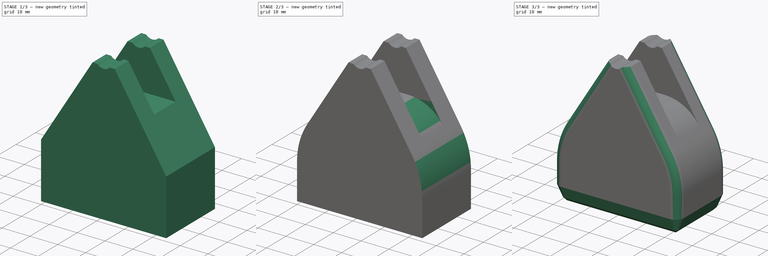
[diagram: build sequence overview — one tinted view per stage of 3, left to right]
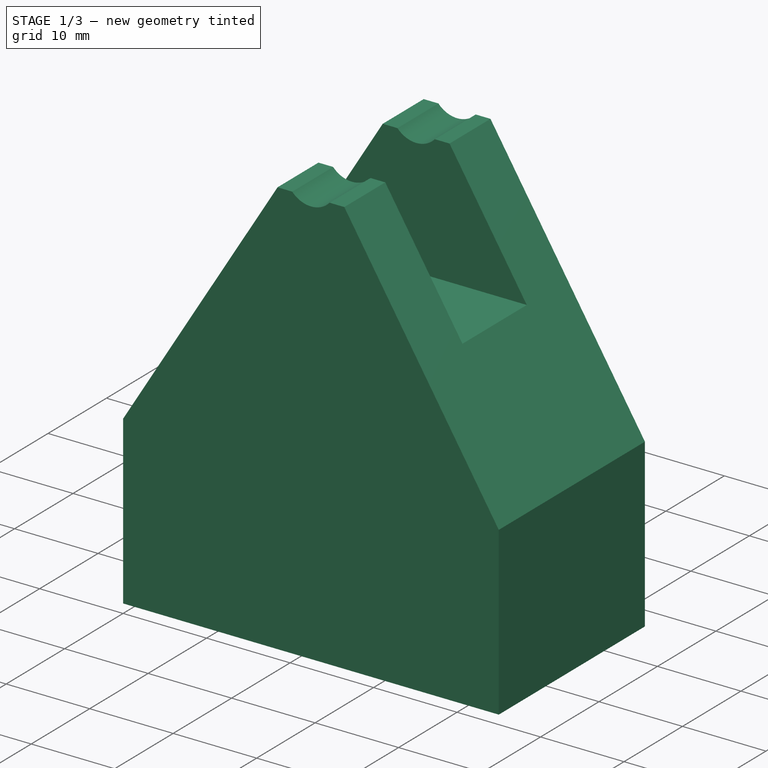
[diagram: stage 1 of 3 — iso view after this stage's code; geometry added in this stage tinted green]
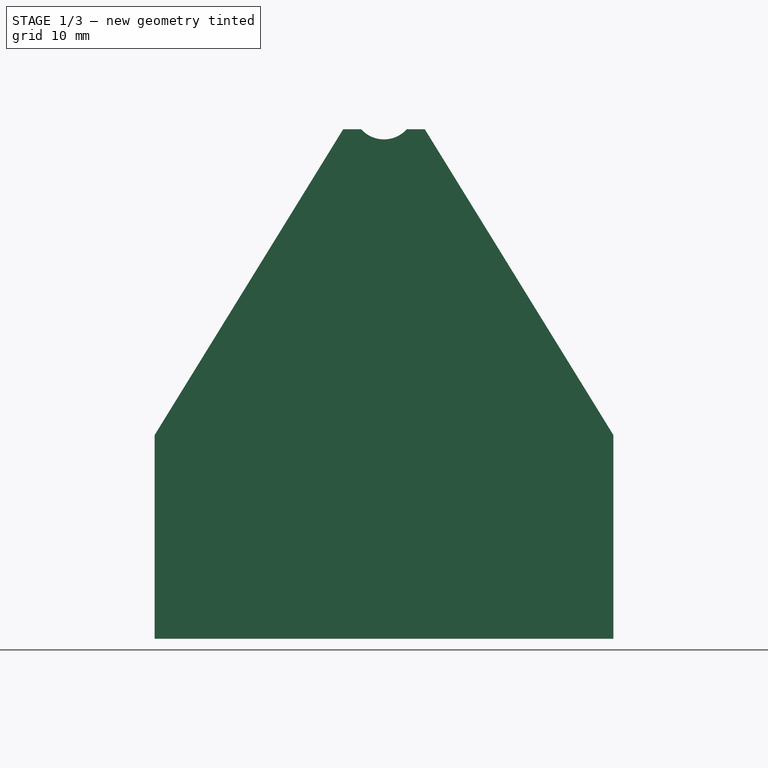
[diagram: stage 1 of 3 — front view after this stage's code; geometry added in this stage tinted green]
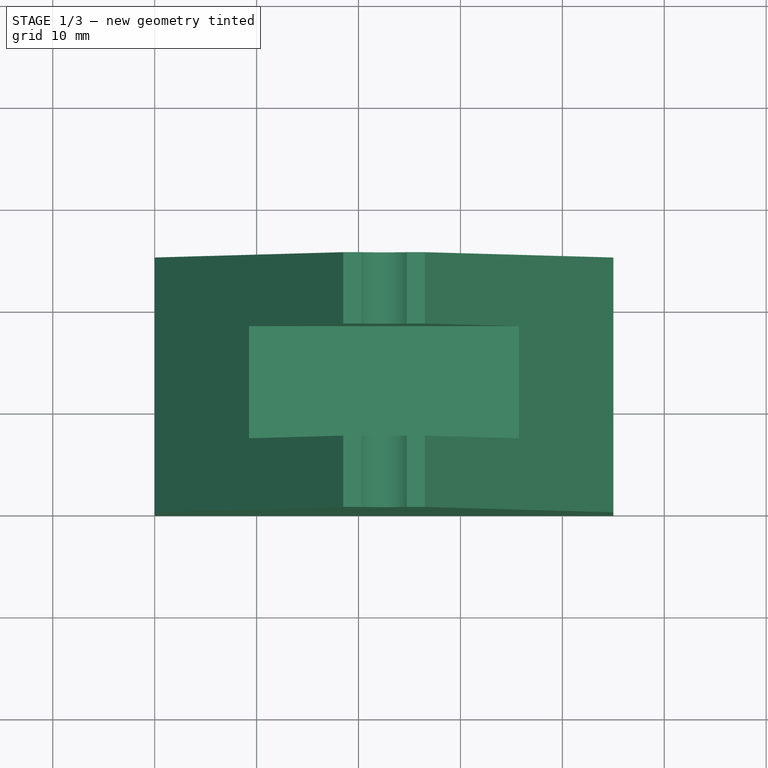
[diagram: stage 1 of 3 — top view after this stage's code; geometry added in this stage tinted green]
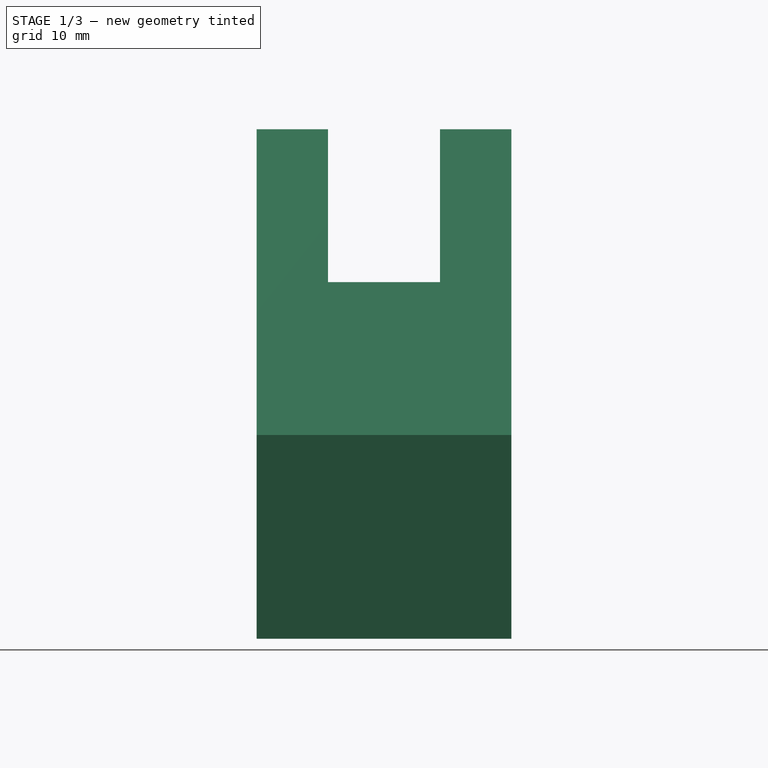
[diagram: stage 1 of 3 — right view after this stage's code; geometry added in this stage tinted green]
FCSTD DOCUMENT  (FreeCAD 0.16R6490 (Git))
Label: bearing_palm_press_0.1
License: All rights reserved
LicenseURL: http://en.wikipedia.org/wiki/All_rights_reserved
objects: Sketcher::SketchObject×3, PartDesign::Fillet×3, PartDesign::Pocket×2, PartDesign::Chamfer×2, PartDesign::Pad×1
note: 14 computed .brp shape members not serialized (recipe doc carries the construction recipe); baked Part::Feature solids carry a one-line shape summary decoded from their .brp

FEATURE [Sketcher::SketchObject] Sketch
  sketch-geometry (4):
    g0: LineSegment StartX=0 StartY=0 StartZ=0 EndX=45 EndY=0 EndZ=0
    g1: LineSegment StartX=45 StartY=0 StartZ=0 EndX=45 EndY=25 EndZ=0
    g2: LineSegment StartX=45 StartY=25 StartZ=0 EndX=0 EndY=25 EndZ=0
    g3: LineSegment StartX=0 StartY=25 StartZ=0 EndX=0 EndY=0 EndZ=0
  constraints (11):
    c: Coincident(g0,g1)
    c: Coincident(g1,g2)
    c: Coincident(g2,g3)
    c: Coincident(g3,g0)
    c: Horizontal(g0)
    c: Horizontal(g2)
    c: Vertical(g1)
    c: Vertical(g3)
    c: Coincident(g0,g-1)
    c: DistanceX(g2) = -45
    c: DistanceY(g3) = -25
FEATURE [PartDesign::Pad] Pad
  Length = 50
  Length2 = 100
  Sketch = -> Sketch
  Type = 0
FEATURE [Sketcher::SketchObject] Sketch001
  ExternalGeometry = -> [Pad]
  Placement = pos=(0,0,0) rot=(1,0,0;1.5708rad)
  Support = -> Pad [Face1]
  sketch-geometry (9):
    g0: LineSegment StartX=0 StartY=20 StartZ=0 EndX=18.5 EndY=50 EndZ=0
    g1: LineSegment StartX=18.5 StartY=50 StartZ=0 EndX=0 EndY=50 EndZ=0
    g2: LineSegment StartX=0 StartY=50 StartZ=0 EndX=0 EndY=20 EndZ=0
    g3: LineSegment StartX=45 StartY=20 StartZ=0 EndX=26.5 EndY=50 EndZ=0
    g4: LineSegment StartX=26.5 StartY=50 StartZ=0 EndX=45 EndY=50 EndZ=0
    g5: LineSegment StartX=45 StartY=50 StartZ=0 EndX=45 EndY=20 EndZ=0
    g6: Circle CenterX=22.5 CenterY=52 CenterZ=0 NormalX=0 NormalY=0 NormalZ=1 Radius=3
    g7: LineSegment [constr] StartX=0 StartY=0 StartZ=0 EndX=22.5 EndY=52 EndZ=0
    g8: LineSegment [constr] StartX=22.5 StartY=52 StartZ=0 EndX=45 EndY=0 EndZ=0
  constraints (23):
    c: PointOnObject(g0,g-2)
    c: PointOnObject(g0,g-3)
    c: Coincident(g0,g1)
    c: Coincident(g1,g-3)
    c: Coincident(g1,g2)
    c: Coincident(g2,g0)
    c: PointOnObject(g3,g-4)
    c: PointOnObject(g3,g-3)
    c: Coincident(g3,g4)
    c: Coincident(g4,g-4)
    c: Coincident(g4,g5)
    c: Coincident(g5,g3)
    c: DistanceX(g0,g3) = 8
    c: Equal(g0,g3)
    c: DistanceY(g2) = -30
    c: DistanceY(g3,g4) = 30
    c: Coincident(g-1,g7)
    c: Coincident(g7,g6)
    c: Coincident(g7,g8)
    c: Coincident(g8,g-4)
    c: Equal(g8,g7)
    c: Radius(g6) = 3
    c: DistanceY(g6,g3) = -2
FEATURE [PartDesign::Pocket] Pocket
  Length = 5
  Sketch = -> Sketch001
  Type = 1
FEATURE [Sketcher::SketchObject] Sketch002
  ExternalGeometry = -> [Pocket]
  Placement = pos=(0,0,50) rot=(0,0,1;0rad)
  Support = -> Pocket [Face7]
  sketch-geometry (6):
    g0: LineSegment StartX=0 StartY=18 StartZ=0 EndX=45 EndY=18 EndZ=0
    g1: LineSegment StartX=45 StartY=18 StartZ=0 EndX=45 EndY=7 EndZ=0
    g2: LineSegment StartX=45 StartY=7 StartZ=0 EndX=0 EndY=7 EndZ=0
    g3: LineSegment StartX=0 StartY=7 StartZ=0 EndX=0 EndY=18 EndZ=0
    g4: LineSegment [constr] StartX=0 StartY=18 StartZ=0 EndX=45 EndY=25 EndZ=0
    g5: LineSegment [constr] StartX=0 StartY=7 StartZ=0 EndX=45 EndY=0 EndZ=0
  constraints (16):
    c: Coincident(g0,g1)
    c: Coincident(g1,g2)
    c: Coincident(g2,g3)
    c: Coincident(g3,g0)
    c: Horizontal(g0)
    c: Horizontal(g2)
    c: Vertical(g1)
    c: Vertical(g3)
    c: PointOnObject(g0,g-2)
    c: Coincident(g4,g0)
    c: Coincident(g4,g-3)
    c: Coincident(g5,g2)
    c: Coincident(g5,g-3)
    c: PointOnObject(g1,g-3)
    c: Equal(g4,g5)
    c: DistanceY(g3) = 11
FEATURE [PartDesign::Pocket] Pocket001
  Length = 15
  Sketch = -> Sketch002
  Type = 0
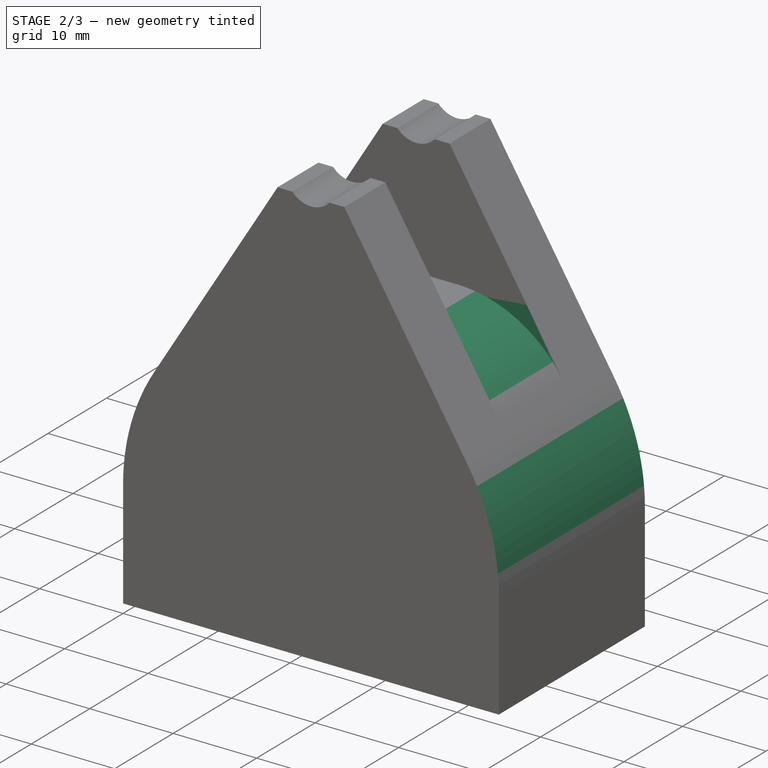
[diagram: stage 2 of 3 — iso view after this stage's code; geometry added in this stage tinted green]
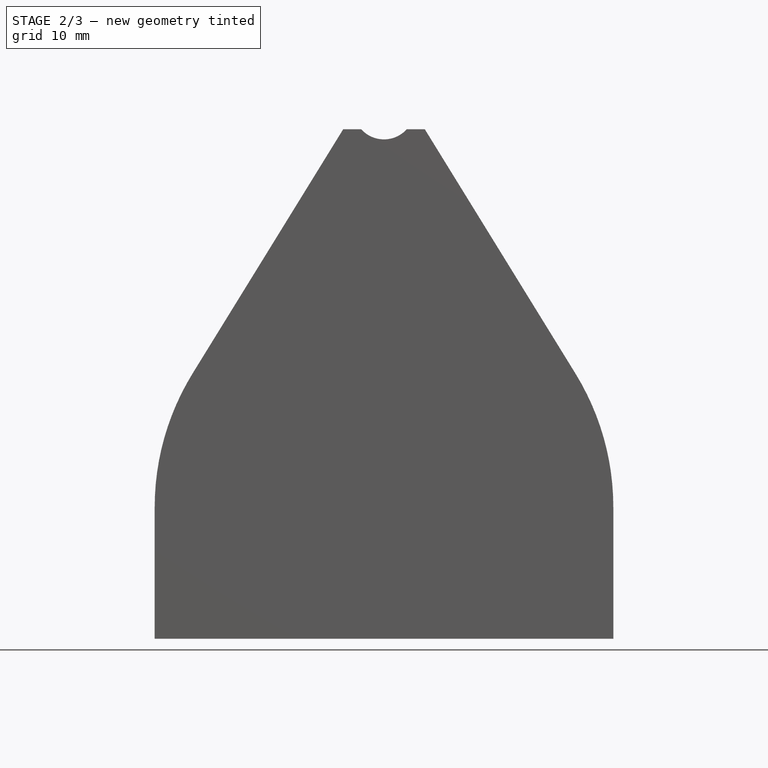
[diagram: stage 2 of 3 — front view after this stage's code; geometry added in this stage tinted green]
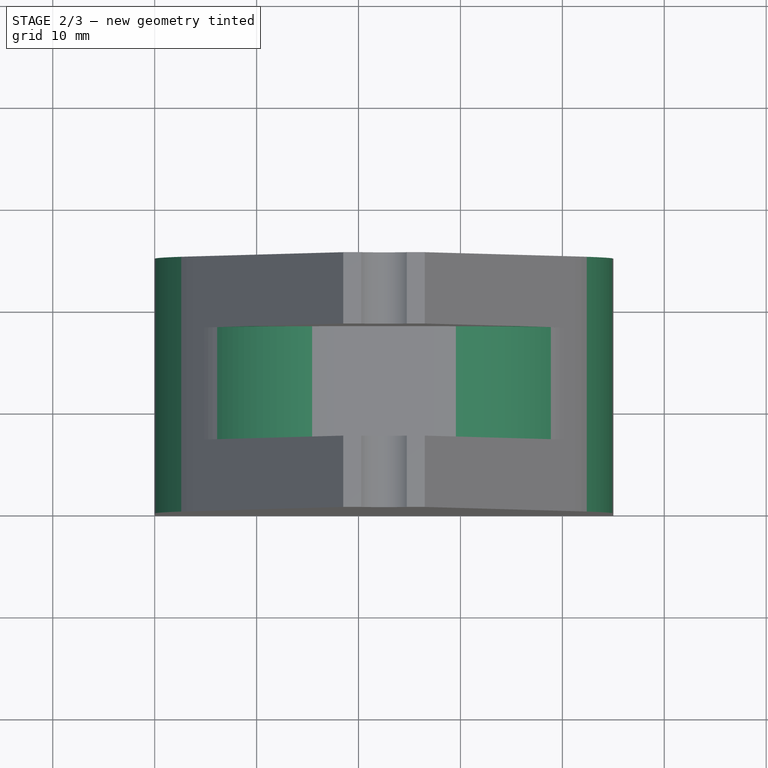
[diagram: stage 2 of 3 — top view after this stage's code; geometry added in this stage tinted green]
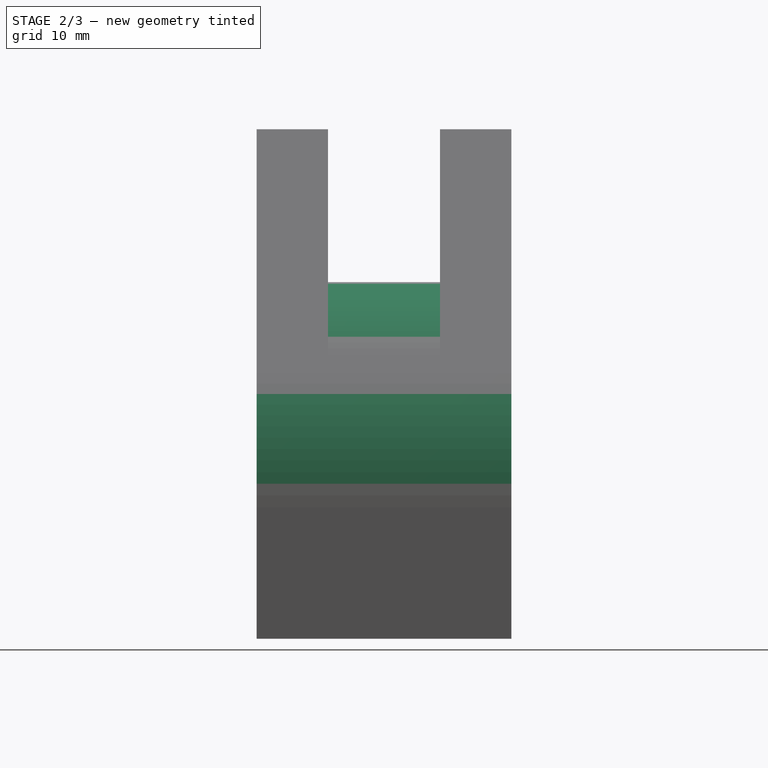
[diagram: stage 2 of 3 — right view after this stage's code; geometry added in this stage tinted green]
FEATURE [PartDesign::Fillet] Fillet
  Base = -> Pocket001 [Edge27,Edge16]
  Radius = 15
FEATURE [PartDesign::Fillet] Fillet001
  Base = -> Fillet [Edge8,Edge48]
  Radius = 25
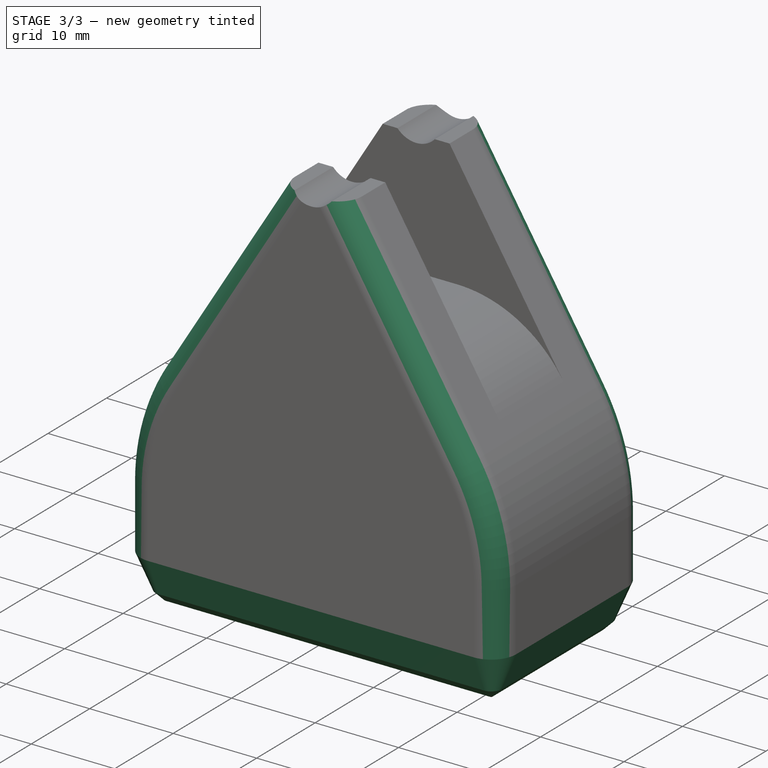
[diagram: stage 3 of 3 — iso view after this stage's code; geometry added in this stage tinted green]
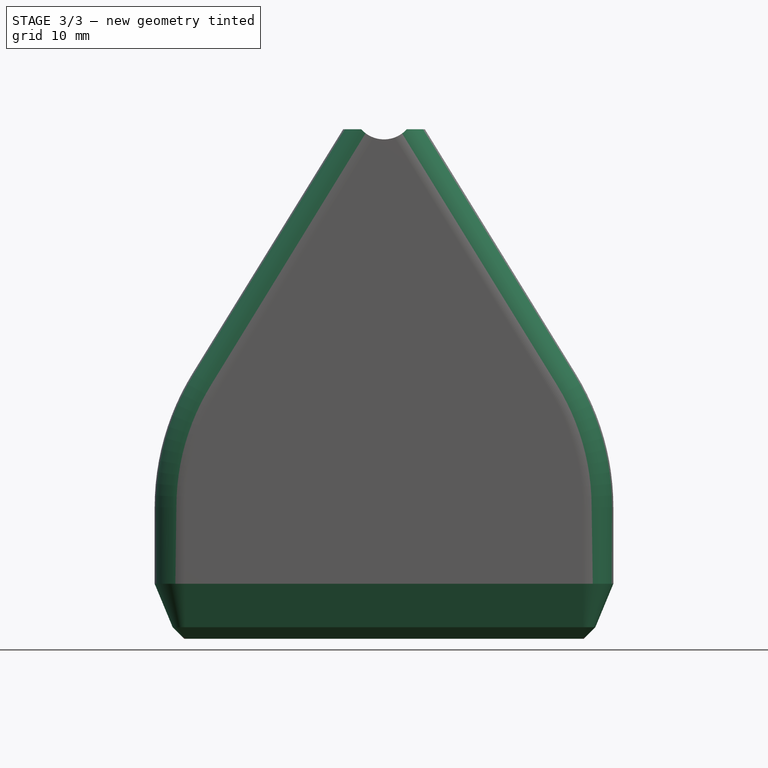
[diagram: stage 3 of 3 — front view after this stage's code; geometry added in this stage tinted green]
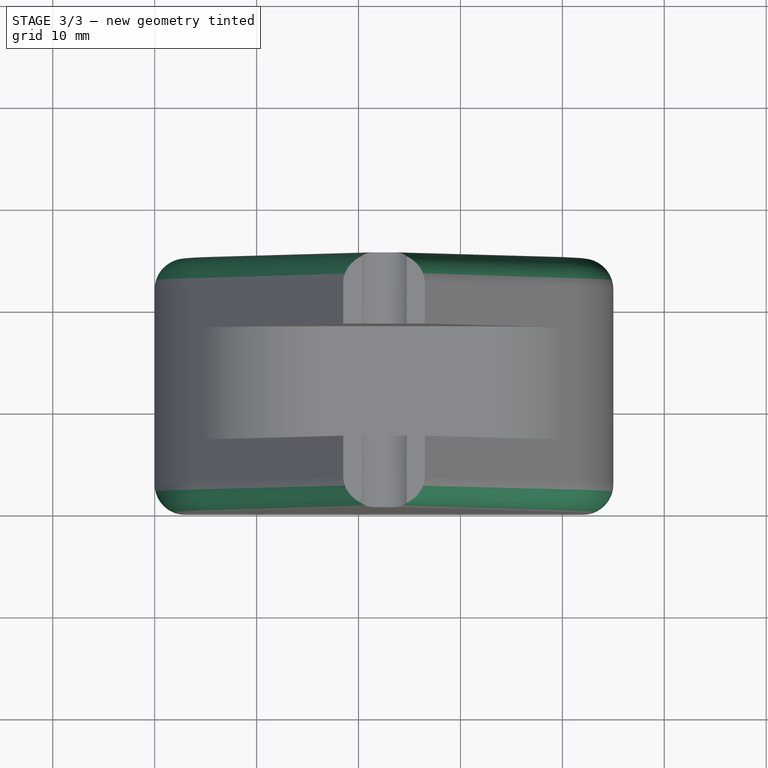
[diagram: stage 3 of 3 — top view after this stage's code; geometry added in this stage tinted green]
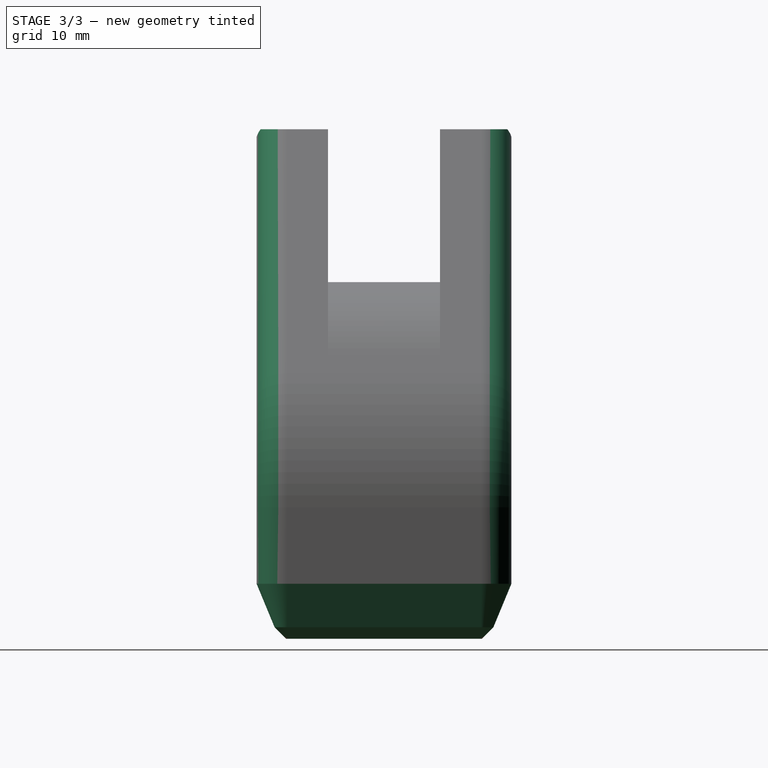
[diagram: stage 3 of 3 — right view after this stage's code; geometry added in this stage tinted green]
FEATURE [PartDesign::Fillet] Fillet002
  Base = -> Fillet001 [Edge28,Edge12,Edge20,Edge17]
  Radius = 3
FEATURE [PartDesign::Chamfer] Chamfer
  Base = -> Fillet002 [Edge51,Edge75,Edge73,Edge76,Edge47,Edge77,Edge74,Edge59]
  Size = 2.9
FEATURE [PartDesign::Chamfer] Chamfer001
  Base = -> Chamfer [Edge22,Edge45]
  Size = 2.5
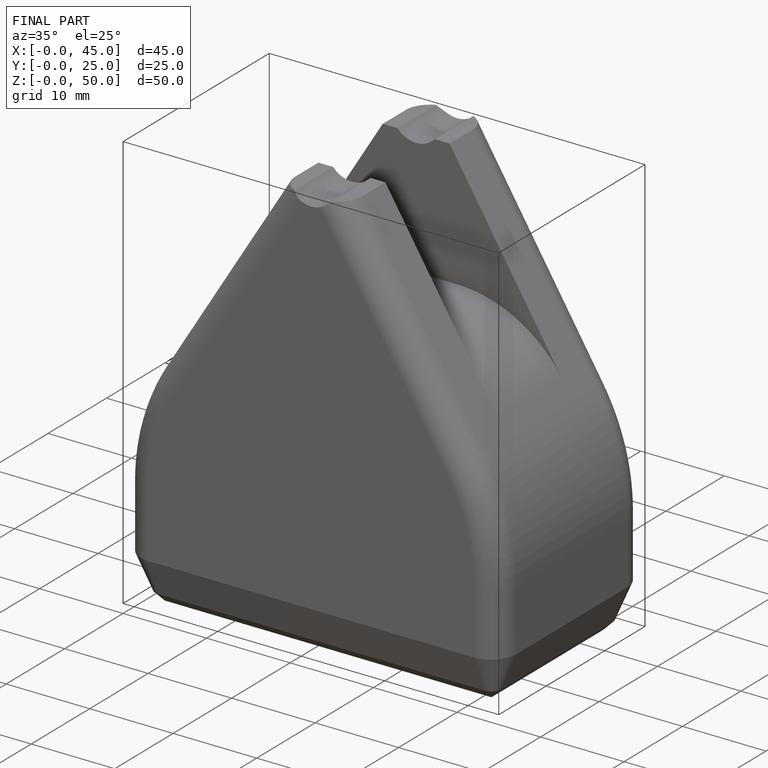
[diagram: finished part — iso view with bounding-box wireframe]
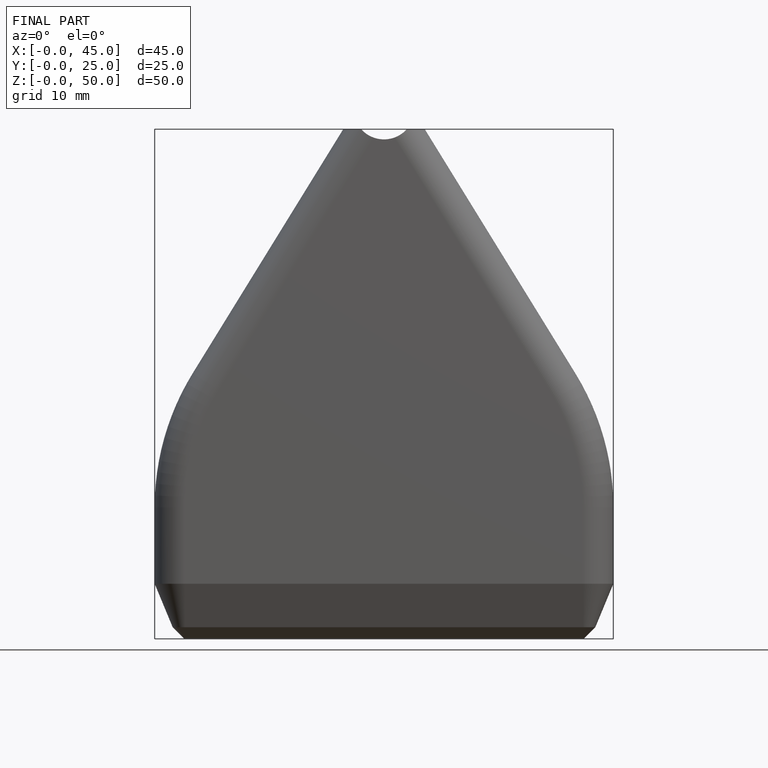
[diagram: finished part — front view with bounding-box wireframe]
